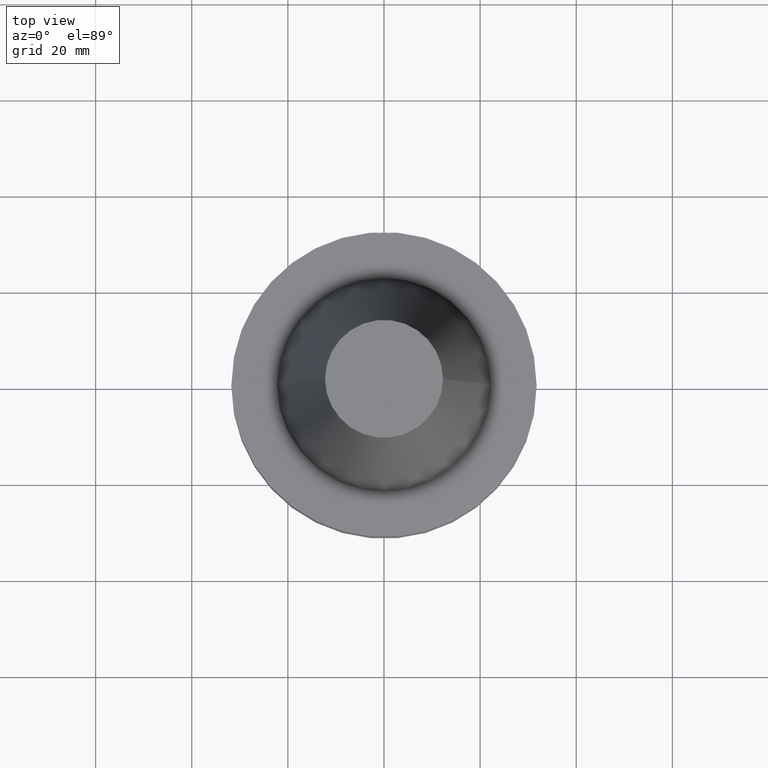
[diagram: clean part render]
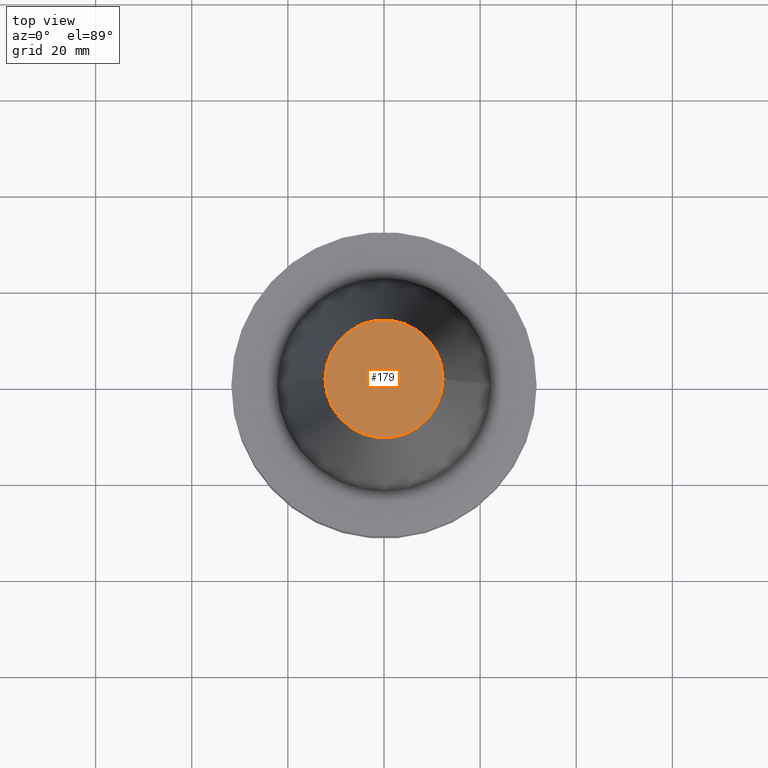
[diagram: same view with one face highlighted and labeled with its STEP entity id]
A machine part, top view. The second image highlights one B-rep face of the part: STEP entity #179.
In plain terms, the highlighted planar face has unit normal (0, 0, -1).
Its self-contained STEP definition (entity closure, byte-faithful):
#39 = ORIENTED_EDGE ( 'NONE', *, *, #465, .T. ) ;
#57 = AXIS2_PLACEMENT_3D ( 'NONE', #622, #543, #876 ) ;
#148 = DIRECTION ( 'NONE',  ( 1.000000000000000000, 0.000000000000000000, 0.000000000000000000 ) ) ;
#149 = AXIS2_PLACEMENT_3D ( 'NONE', #918, #232, #148 ) ;
#179 = ADVANCED_FACE ( 'NONE', ( #1017 ), #277, .F. ) ;
#186 = CARTESIAN_POINT ( 'NONE',  ( 0.000000000000000000, 12.27178102086201150, 68.25000000000000000 ) ) ;
#232 = DIRECTION ( 'NONE',  ( -0.000000000000000000, -0.000000000000000000, 1.000000000000000000 ) ) ;
#264 = DIRECTION ( 'NONE',  ( 0.000000000000000000, 0.000000000000000000, -1.000000000000000000 ) ) ;
#277 = PLANE ( 'NONE',  #334 ) ;
#334 = AXIS2_PLACEMENT_3D ( 'NONE', #186, #264, #529 ) ;
#375 = VERTEX_POINT ( 'NONE', #726 ) ;
#396 = EDGE_CURVE ( 'NONE', #772, #375, #741, .T. ) ;
#419 = ORIENTED_EDGE ( 'NONE', *, *, #396, .T. ) ;
#465 = EDGE_CURVE ( 'NONE', #375, #772, #1055, .T. ) ;
#529 = DIRECTION ( 'NONE',  ( -1.000000000000000000, 0.000000000000000000, -0.000000000000000000 ) ) ;
#541 = CARTESIAN_POINT ( 'NONE',  ( 12.27178102086201150, 2.112318622904291439E-15, 68.25000000000000000 ) ) ;
#543 = DIRECTION ( 'NONE',  ( -0.000000000000000000, -0.000000000000000000, 1.000000000000000000 ) ) ;
#589 = EDGE_LOOP ( 'NONE', ( #39, #419 ) ) ;
#622 = CARTESIAN_POINT ( 'NONE',  ( 0.000000000000000000, 0.000000000000000000, 68.25000000000000000 ) ) ;
#726 = CARTESIAN_POINT ( 'NONE',  ( -12.27178102086201150, 0.000000000000000000, 68.25000000000000000 ) ) ;
#741 = CIRCLE ( 'NONE', #57, 12.27178102086201150 ) ;
#772 = VERTEX_POINT ( 'NONE', #541 ) ;
#876 = DIRECTION ( 'NONE',  ( 1.000000000000000000, 0.000000000000000000, 0.000000000000000000 ) ) ;
#918 = CARTESIAN_POINT ( 'NONE',  ( 0.000000000000000000, 0.000000000000000000, 68.25000000000000000 ) ) ;
#1017 = FACE_OUTER_BOUND ( 'NONE', #589, .T. ) ;
#1055 = CIRCLE ( 'NONE', #149, 12.27178102086201150 ) ;